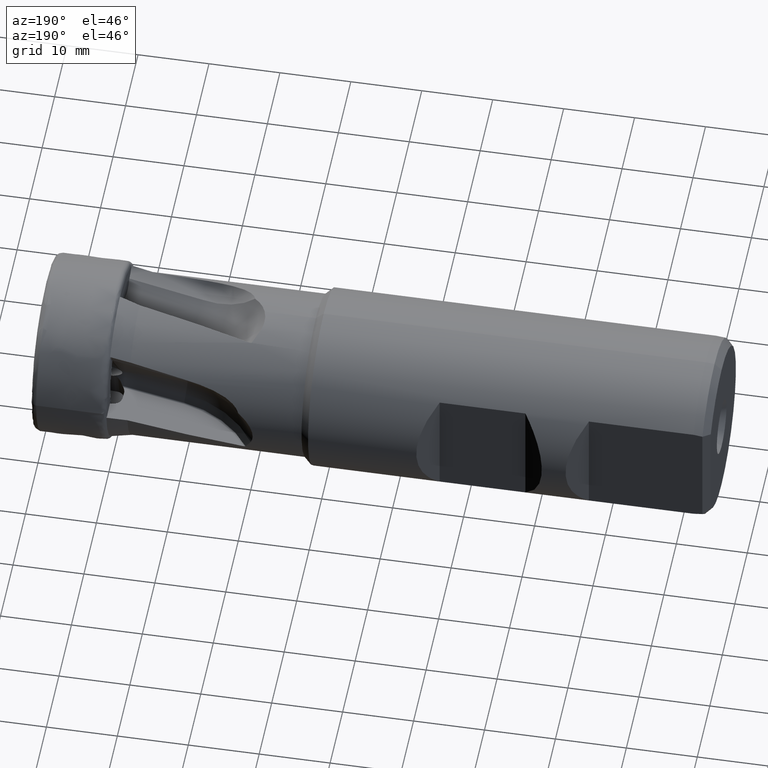
[diagram: clean part render]
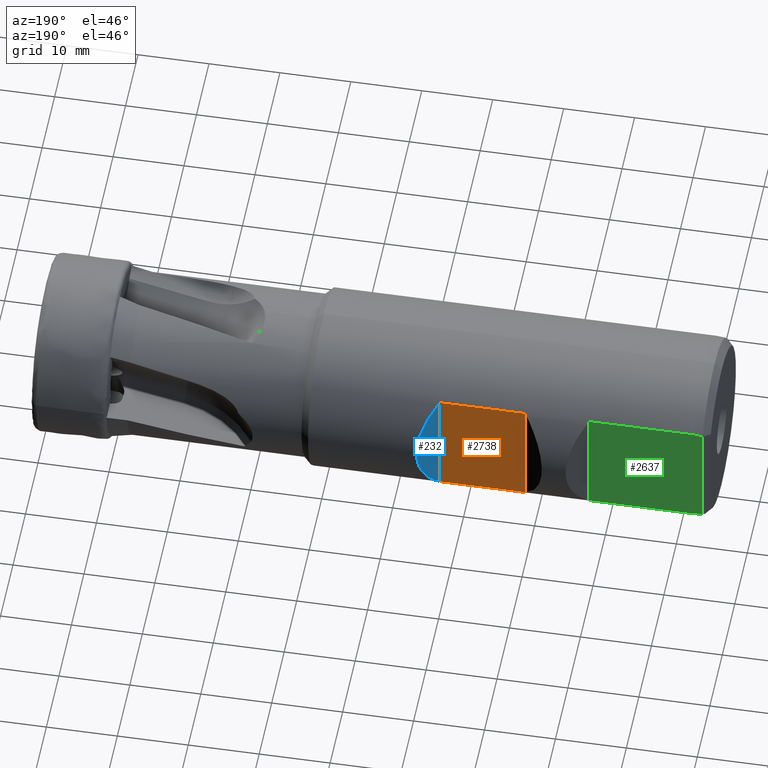
[diagram: same view with three faces highlighted in distinct colors, each labeled with its STEP entity id]
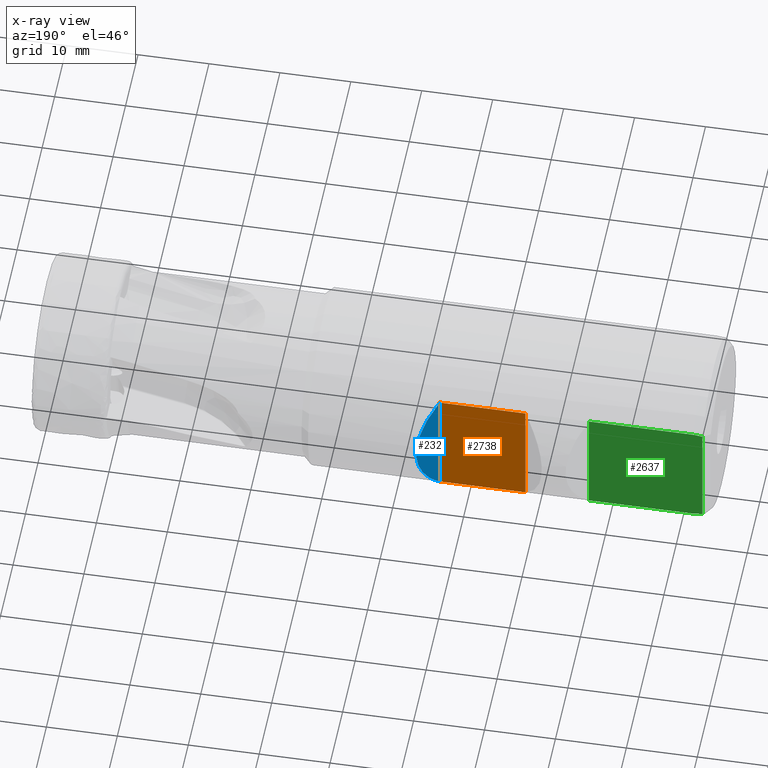
[diagram: x-ray of the same camera — body ghosted, the three highlighted faces saturated]
A machine part, auxiliary view with three faces highlighted in distinct colors.
The next image is the same camera in x-ray (body ghosted, the three faces saturated) — at least one of them is partly hidden behind the body in this view.
Their STEP definitions:

[orange] entity #2738 — the highlighted planar face has unit normal (-0, -1, 0).
#225 = LINE ( 'NONE', #919, #227 ) ;
#227 = VECTOR ( 'NONE', #920, 1000.000000000000000 ) ;
#919 = CARTESIAN_POINT ( 'NONE',  ( 1.390646092311985400E-015, 9.699999999999997500, -7.884161337770803100 ) ) ;
#920 = DIRECTION ( 'NONE',  ( -1.000000000000000000, 0.0000000000000000000, 0.0000000000000000000 ) ) ;
#955 = DIRECTION ( 'NONE',  ( 1.000000000000000000, -0.0000000000000000000, -0.0000000000000000000 ) ) ;
#962 = CARTESIAN_POINT ( 'NONE',  ( 1.390646092311985400E-015, 9.699999999999997500, 7.884161337770803100 ) ) ;
#1177 = ORIENTED_EDGE ( 'NONE', *, *, #5671, .T. ) ;
#1209 = ORIENTED_EDGE ( 'NONE', *, *, #5663, .T. ) ;
#1234 = ORIENTED_EDGE ( 'NONE', *, *, #2234, .T. ) ;
#1255 = ORIENTED_EDGE ( 'NONE', *, *, #2102, .F. ) ;
#2102 = EDGE_CURVE ( 'NONE', #7753, #7699, #2616, .T. ) ;
#2234 = EDGE_CURVE ( 'NONE', #7703, #7684, #4732, .T. ) ;
#2385 = CARTESIAN_POINT ( 'NONE',  ( -56.57000000000000700, 9.700000000000004600, -7.884161337770791500 ) ) ;
#2399 = CARTESIAN_POINT ( 'NONE',  ( -68.67000000000001600, 9.699999999999997500, -7.884161337770803100 ) ) ;
#2402 = CARTESIAN_POINT ( 'NONE',  ( -56.57000000000000700, 9.700000000000004600, 7.884161337770791500 ) ) ;
#2444 = CARTESIAN_POINT ( 'NONE',  ( -68.67000000000001600, 9.699999999999997500, 7.884161337770803100 ) ) ;
#2616 = LINE ( 'NONE', #2930, #6463 ) ;
#2738 = ADVANCED_FACE ( 'NONE', ( #8212 ), #6503, .F. ) ;
#2930 = CARTESIAN_POINT ( 'NONE',  ( -68.67000000000001600, 9.700000000000006400, 23.14999999999999900 ) ) ;
#3075 = DIRECTION ( 'NONE',  ( -0.0000000000000000000, -0.0000000000000000000, -1.000000000000000000 ) ) ;
#3093 = LINE ( 'NONE', #962, #3094 ) ;
#3094 = VECTOR ( 'NONE', #955, 1000.000000000000000 ) ;
#4190 = EDGE_LOOP ( 'NONE', ( #1234, #1209, #1255, #1177 ) ) ;
#4732 = LINE ( 'NONE', #7992, #4758 ) ;
#4758 = VECTOR ( 'NONE', #8025, 1000.000000000000000 ) ;
#5249 = AXIS2_PLACEMENT_3D ( 'NONE', #6502, #6496, #6509 ) ;
#5663 = EDGE_CURVE ( 'NONE', #7684, #7699, #225, .T. ) ;
#5671 = EDGE_CURVE ( 'NONE', #7753, #7703, #3093, .T. ) ;
#6463 = VECTOR ( 'NONE', #3075, 1000.000000000000000 ) ;
#6496 = DIRECTION ( 'NONE',  ( -1.433655765270088600E-016, -1.000000000000000000, 0.0000000000000000000 ) ) ;
#6502 = CARTESIAN_POINT ( 'NONE',  ( -68.67000000000001600, 9.700000000000006400, 23.14999999999999900 ) ) ;
#6503 = PLANE ( 'NONE',  #5249 ) ;
#6509 = DIRECTION ( 'NONE',  ( 1.000000000000000000, -1.433655765270088600E-016, 0.0000000000000000000 ) ) ;
#7684 = VERTEX_POINT ( 'NONE', #2385 ) ;
#7699 = VERTEX_POINT ( 'NONE', #2399 ) ;
#7703 = VERTEX_POINT ( 'NONE', #2402 ) ;
#7753 = VERTEX_POINT ( 'NONE', #2444 ) ;
#7992 = CARTESIAN_POINT ( 'NONE',  ( -56.57000000000000700, 9.700000000000004600, 23.14999999999999900 ) ) ;
#8025 = DIRECTION ( 'NONE',  ( -0.0000000000000000000, -0.0000000000000000000, -1.000000000000000000 ) ) ;
#8212 = FACE_OUTER_BOUND ( 'NONE', #4190, .T. ) ;

[blue] entity #232 — the highlighted planar face has unit normal (0.7071, -0.7071, 0).
#232 = ADVANCED_FACE ( 'NONE', ( #4639 ), #4957, .F. ) ;
#319 = EDGE_LOOP ( 'NONE', ( #1203, #1264 ) ) ;
#1203 = ORIENTED_EDGE ( 'NONE', *, *, #2234, .F. ) ;
#1264 = ORIENTED_EDGE ( 'NONE', *, *, #5554, .T. ) ;
#1492 = CARTESIAN_POINT ( 'NONE',  ( -52.67282131661445300, 13.59717868338556500, 3.089404912919590600 ) ) ;
#1499 = CARTESIAN_POINT ( 'NONE',  ( -52.67282131661445300, 13.59717868338556600, -3.089404912919587500 ) ) ;
#1504 = CARTESIAN_POINT ( 'NONE',  ( -56.57000000000000700, 9.700000000000004600, 7.884161337770791500 ) ) ;
#1506 = CARTESIAN_POINT ( 'NONE',  ( -56.57000000000000700, 9.700000000000004600, -7.884161337770791500 ) ) ;
#2060 =( BOUNDED_CURVE ( )  B_SPLINE_CURVE ( 3, ( #1504, #1492, #1499, #1506 ),
 .UNSPECIFIED., .F., .F. ) 
 B_SPLINE_CURVE_WITH_KNOTS ( ( 4, 4 ),
 ( 5.600687989903615700, 6.965682624455556700 ),
 .UNSPECIFIED. ) 
 CURVE ( )  GEOMETRIC_REPRESENTATION_ITEM ( )  RATIONAL_B_SPLINE_CURVE ( ( 1.000000000000000000, 0.8506666666666672400, 0.8506666666666672400, 1.000000000000000000 ) ) 
 REPRESENTATION_ITEM ( '' )  );
#2234 = EDGE_CURVE ( 'NONE', #7703, #7684, #4732, .T. ) ;
#2385 = CARTESIAN_POINT ( 'NONE',  ( -56.57000000000000700, 9.700000000000004600, -7.884161337770791500 ) ) ;
#2402 = CARTESIAN_POINT ( 'NONE',  ( -56.57000000000000700, 9.700000000000004600, 7.884161337770791500 ) ) ;
#3387 = AXIS2_PLACEMENT_3D ( 'NONE', #4901, #5034, #4810 ) ;
#4639 = FACE_OUTER_BOUND ( 'NONE', #319, .T. ) ;
#4732 = LINE ( 'NONE', #7992, #4758 ) ;
#4758 = VECTOR ( 'NONE', #8025, 1000.000000000000000 ) ;
#4810 = DIRECTION ( 'NONE',  ( 0.7071067811865463500, 0.7071067811865487900, 0.0000000000000000000 ) ) ;
#4901 = CARTESIAN_POINT ( 'NONE',  ( -56.57000000000000700, 9.700000000000004600, 23.14999999999999900 ) ) ;
#4957 = PLANE ( 'NONE',  #3387 ) ;
#5034 = DIRECTION ( 'NONE',  ( 0.7071067811865487900, -0.7071067811865463500, 0.0000000000000000000 ) ) ;
#5554 = EDGE_CURVE ( 'NONE', #7703, #7684, #2060, .T. ) ;
#7684 = VERTEX_POINT ( 'NONE', #2385 ) ;
#7703 = VERTEX_POINT ( 'NONE', #2402 ) ;
#7992 = CARTESIAN_POINT ( 'NONE',  ( -56.57000000000000700, 9.700000000000004600, 23.14999999999999900 ) ) ;
#8025 = DIRECTION ( 'NONE',  ( -0.0000000000000000000, -0.0000000000000000000, -1.000000000000000000 ) ) ;

[green] entity #2637 — the highlighted planar face has unit normal (0, -1, 0).
#157 = LINE ( 'NONE', #1502, #159 ) ;
#159 = VECTOR ( 'NONE', #1503, 1000.000000000000000 ) ;
#164 = LINE ( 'NONE', #1518, #166 ) ;
#166 = VECTOR ( 'NONE', #1519, 1000.000000000000000 ) ;
#371 = VERTEX_POINT ( 'NONE', #7633 ) ;
#386 = VERTEX_POINT ( 'NONE', #7556 ) ;
#1179 = ORIENTED_EDGE ( 'NONE', *, *, #5572, .T. ) ;
#1211 = ORIENTED_EDGE ( 'NONE', *, *, #5553, .T. ) ;
#1220 = ORIENTED_EDGE ( 'NONE', *, *, #2232, .T. ) ;
#1231 = ORIENTED_EDGE ( 'NONE', *, *, #5559, .T. ) ;
#1233 = ORIENTED_EDGE ( 'NONE', *, *, #2140, .F. ) ;
#1257 = ORIENTED_EDGE ( 'NONE', *, *, #2229, .T. ) ;
#1502 = CARTESIAN_POINT ( 'NONE',  ( 0.0000000000000000000, 9.700000000000006400, -7.884161337770791500 ) ) ;
#1503 = DIRECTION ( 'NONE',  ( -1.000000000000000000, 0.0000000000000000000, 0.0000000000000000000 ) ) ;
#1518 = CARTESIAN_POINT ( 'NONE',  ( 0.0000000000000000000, 9.700000000000006400, 7.884161337770791500 ) ) ;
#1519 = DIRECTION ( 'NONE',  ( 1.000000000000000000, -0.0000000000000000000, -0.0000000000000000000 ) ) ;
#1545 = CARTESIAN_POINT ( 'NONE',  ( -93.62000000000000500, 9.700000000000006400, 7.724635913750210700 ) ) ;
#1555 = CARTESIAN_POINT ( 'NONE',  ( -93.20337556146932900, 9.700000000000006400, 7.778138945820207300 ) ) ;
#1562 = CARTESIAN_POINT ( 'NONE',  ( -92.78670804867606100, 9.700000000000006400, 7.831307517202740000 ) ) ;
#1563 = CARTESIAN_POINT ( 'NONE',  ( -92.36999999999991900, 9.700000000000006400, 7.884161337770791500 ) ) ;
#2066 = B_SPLINE_CURVE_WITH_KNOTS ( 'NONE', 3,
 ( #1545, #1555, #1562, #1563 ),
 .UNSPECIFIED., .F., .F.,
 ( 4, 4 ),
 ( 0.02174805733030091600, 0.02300789162326364100 ),
 .UNSPECIFIED. ) ;
#2140 = EDGE_CURVE ( 'NONE', #386, #371, #6474, .T. ) ;
#2229 = EDGE_CURVE ( 'NONE', #7710, #371, #4026, .T. ) ;
#2232 = EDGE_CURVE ( 'NONE', #7648, #7727, #4763, .T. ) ;
#2365 = CARTESIAN_POINT ( 'NONE',  ( -92.36999999999991900, 9.700000000000006400, 7.884161337770791500 ) ) ;
#2368 = CARTESIAN_POINT ( 'NONE',  ( -77.62000000000000500, 9.700000000000006400, 7.884161337770799500 ) ) ;
#2409 = CARTESIAN_POINT ( 'NONE',  ( -92.36999999999991900, 9.700000000000006400, -7.884161337770791500 ) ) ;
#2424 = CARTESIAN_POINT ( 'NONE',  ( -77.62000000000000500, 9.700000000000006400, -7.884161337770794200 ) ) ;
#2637 = ADVANCED_FACE ( 'NONE', ( #4744 ), #7940, .F. ) ;
#3518 = EDGE_LOOP ( 'NONE', ( #1220, #1211, #1257, #1233, #1179, #1231 ) ) ;
#3788 = CARTESIAN_POINT ( 'NONE',  ( -93.62000000000000500, 9.700000000000006400, 23.14999999999999900 ) ) ;
#3840 = DIRECTION ( 'NONE',  ( -0.0000000000000000000, -0.0000000000000000000, -1.000000000000000000 ) ) ;
#4026 = B_SPLINE_CURVE_WITH_KNOTS ( 'NONE', 3,
 ( #8080, #8097, #8017, #8000 ),
 .UNSPECIFIED., .F., .F.,
 ( 4, 4 ),
 ( 0.02335902754890015900, 0.02461912784830145100 ),
 .UNSPECIFIED. ) ;
#4744 = FACE_OUTER_BOUND ( 'NONE', #3518, .T. ) ;
#4746 = VECTOR ( 'NONE', #7989, 1000.000000000000000 ) ;
#4763 = LINE ( 'NONE', #8002, #4746 ) ;
#5094 = AXIS2_PLACEMENT_3D ( 'NONE', #7913, #8047, #7917 ) ;
#5553 = EDGE_CURVE ( 'NONE', #7727, #7710, #157, .T. ) ;
#5559 = EDGE_CURVE ( 'NONE', #7642, #7648, #164, .T. ) ;
#5572 = EDGE_CURVE ( 'NONE', #386, #7642, #2066, .T. ) ;
#6474 = LINE ( 'NONE', #3788, #6477 ) ;
#6477 = VECTOR ( 'NONE', #3840, 1000.000000000000000 ) ;
#7556 = CARTESIAN_POINT ( 'NONE',  ( -93.62000000000000500, 9.700000000000006400, 7.724635913750210700 ) ) ;
#7633 = CARTESIAN_POINT ( 'NONE',  ( -93.62000000000000500, 9.700000000000006400, -7.724635913750211600 ) ) ;
#7642 = VERTEX_POINT ( 'NONE', #2365 ) ;
#7648 = VERTEX_POINT ( 'NONE', #2368 ) ;
#7710 = VERTEX_POINT ( 'NONE', #2409 ) ;
#7727 = VERTEX_POINT ( 'NONE', #2424 ) ;
#7913 = CARTESIAN_POINT ( 'NONE',  ( -77.62000000000000500, 9.700000000000006400, 23.14999999999999900 ) ) ;
#7917 = DIRECTION ( 'NONE',  ( 0.0000000000000000000, -0.0000000000000000000, -1.000000000000000000 ) ) ;
#7940 = PLANE ( 'NONE',  #5094 ) ;
#7989 = DIRECTION ( 'NONE',  ( -0.0000000000000000000, -0.0000000000000000000, -1.000000000000000000 ) ) ;
#8000 = CARTESIAN_POINT ( 'NONE',  ( -93.62000000000000500, 9.700000000000006400, -7.724635913750211600 ) ) ;
#8002 = CARTESIAN_POINT ( 'NONE',  ( -77.62000000000000500, 9.700000000000006400, 23.14999999999999900 ) ) ;
#8017 = CARTESIAN_POINT ( 'NONE',  ( -93.20338236620078500, 9.700000000000006400, -7.778138071954607800 ) ) ;
#8047 = DIRECTION ( 'NONE',  ( 0.0000000000000000000, -1.000000000000000000, 0.0000000000000000000 ) ) ;
#8080 = CARTESIAN_POINT ( 'NONE',  ( -92.36999999999991900, 9.700000000000006400, -7.884161337770791500 ) ) ;
#8097 = CARTESIAN_POINT ( 'NONE',  ( -92.78671471861480300, 9.700000000000006400, -7.831306671210569400 ) ) ;